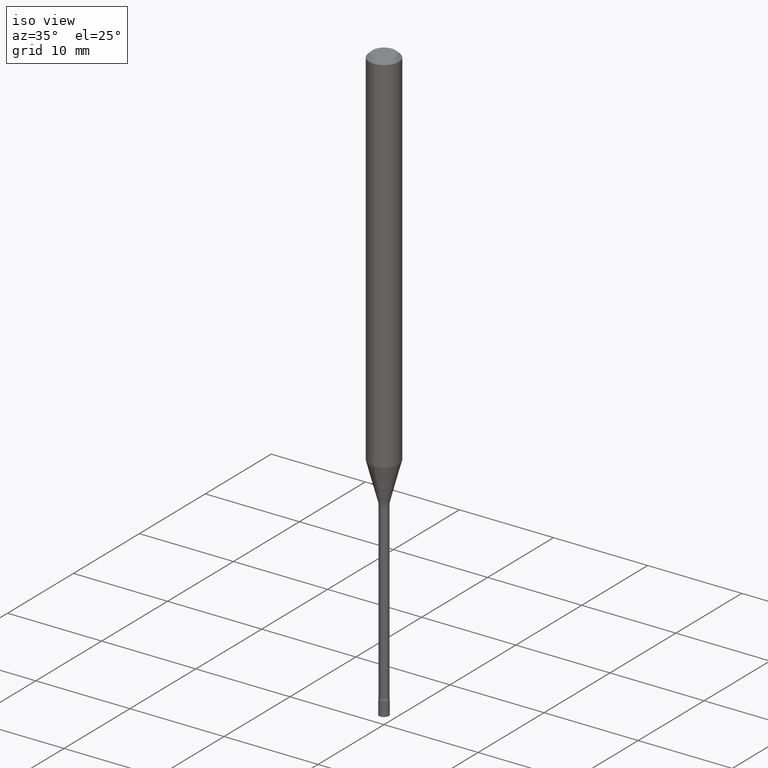
[diagram: clean part render]
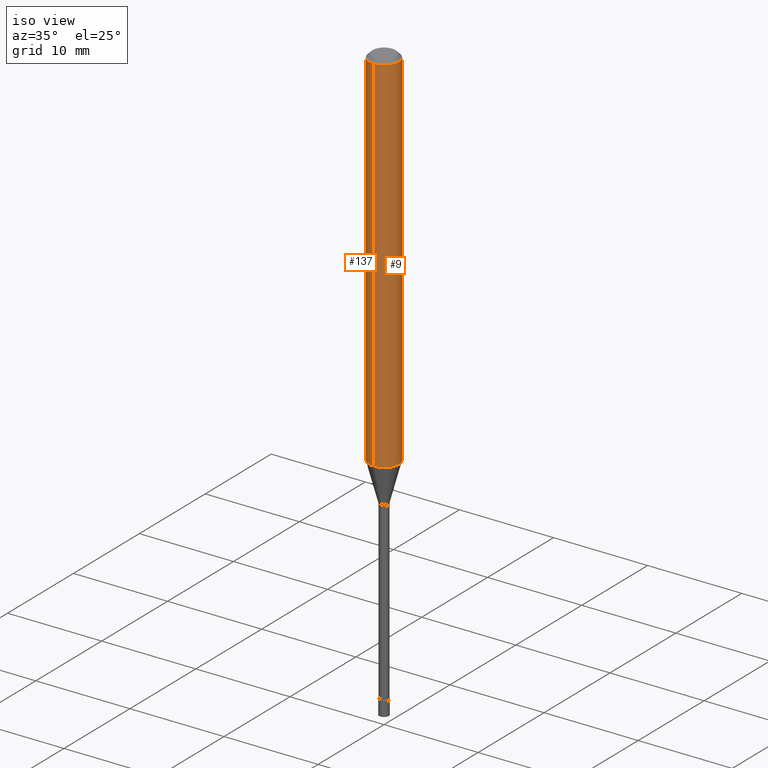
[diagram: same view with one multi-face feature highlighted, each face labeled with its STEP entity id]
A machine part, iso view. The highlighted faces form ONE feature: a constant-radius fillet chain: 2 tangent blend faces with common blend radius 1.5875 mm. The faces share edges in the B-rep.
Their STEP definitions:
[1] entity #9 (Cylinder):
#4 = EDGE_CURVE ( 'NONE', #278, #88, #257, .T. ) ;
#9 = ADVANCED_FACE ( 'NONE', ( #419 ), #294, .T. ) ;
#22 = DIRECTION ( 'NONE',  ( -6.982962677686265922E-15, -1.000000000000000000, 3.491543940097985609E-15 ) ) ;
#26 = LINE ( 'NONE', #93, #269 ) ;
#37 = EDGE_CURVE ( 'NONE', #193, #365, #26, .T. ) ;
#58 = DIRECTION ( 'NONE',  ( -2.445425091962523904E-29, 3.491543940097986004E-15, 1.000000000000000000 ) ) ;
#76 = VECTOR ( 'NONE', #262, 39.37007874015748143 ) ;
#88 = VERTEX_POINT ( 'NONE', #505 ) ;
#93 = CARTESIAN_POINT ( 'NONE',  ( -4.364351673553916201E-16, -0.06250000000000000000, 2.182214962561241006E-16 ) ) ;
#110 = CARTESIAN_POINT ( 'NONE',  ( -4.364351673553541492E-16, -0.06250000000000538458, -1.536909379709239909 ) ) ;
#117 = ORIENTED_EDGE ( 'NONE', *, *, #4, .T. ) ;
#123 = CIRCLE ( 'NONE', #436, 0.06250000000000000000 ) ;
#124 = CARTESIAN_POINT ( 'NONE',  ( 3.758396761213533964E-29, -5.366186631203552806E-15, -1.536909379709240131 ) ) ;
#156 = DIRECTION ( 'NONE',  ( -2.445425091962523904E-29, 3.491543940097986004E-15, 1.000000000000000000 ) ) ;
#164 = DIRECTION ( 'NONE',  ( -6.982962677686265922E-15, -1.000000000000000000, 4.370956789862821150E-15 ) ) ;
#171 = CARTESIAN_POINT ( 'NONE',  ( 3.668137637943792951E-31, -5.237315910146990666E-17, -0.01500000000000003067 ) ) ;
#173 = DIRECTION ( 'NONE',  ( -6.982962677686265922E-15, -1.000000000000000000, 3.483106191921935554E-15 ) ) ;
#193 = VERTEX_POINT ( 'NONE', #110 ) ;
#196 = ORIENTED_EDGE ( 'NONE', *, *, #408, .T. ) ;
#237 = EDGE_LOOP ( 'NONE', ( #196, #117, #315, #449 ) ) ;
#257 = LINE ( 'NONE', #380, #76 ) ;
#262 = DIRECTION ( 'NONE',  ( -2.445425091962523904E-29, 3.491543940097986004E-15, 1.000000000000000000 ) ) ;
#269 = VECTOR ( 'NONE', #58, 39.37007874015748143 ) ;
#278 = VERTEX_POINT ( 'NONE', #396 ) ;
#279 = CIRCLE ( 'NONE', #384, 0.06250000000000000000 ) ;
#280 = CARTESIAN_POINT ( 'NONE',  ( -4.364351673553912750E-16, -0.06250000000000005551, -0.01499999999999981209 ) ) ;
#294 = CYLINDRICAL_SURFACE ( 'NONE', #462, 0.06250000000000000000 ) ;
#295 = DIRECTION ( 'NONE',  ( -2.445425091962523904E-29, 3.491543940097986004E-15, 1.000000000000000000 ) ) ;
#315 = ORIENTED_EDGE ( 'NONE', *, *, #481, .F. ) ;
#365 = VERTEX_POINT ( 'NONE', #280 ) ;
#377 = CARTESIAN_POINT ( 'NONE',  ( 0.000000000000000000, 0.000000000000000000, 0.000000000000000000 ) ) ;
#380 = CARTESIAN_POINT ( 'NONE',  ( 4.440892098500625669E-16, 0.06250000000000000000, -2.182214962561241006E-16 ) ) ;
#384 = AXIS2_PLACEMENT_3D ( 'NONE', #124, #156, #164 ) ;
#396 = CARTESIAN_POINT ( 'NONE',  ( 4.440892098500999885E-16, 0.06249999999999461542, -1.536909379709240575 ) ) ;
#408 = EDGE_CURVE ( 'NONE', #193, #278, #279, .T. ) ;
#419 = FACE_OUTER_BOUND ( 'NONE', #237, .T. ) ;
#436 = AXIS2_PLACEMENT_3D ( 'NONE', #171, #295, #173 ) ;
#449 = ORIENTED_EDGE ( 'NONE', *, *, #37, .F. ) ;
#462 = AXIS2_PLACEMENT_3D ( 'NONE', #377, #465, #22 ) ;
#465 = DIRECTION ( 'NONE',  ( -2.445425091962523904E-29, 3.491543940097986004E-15, 1.000000000000000000 ) ) ;
#481 = EDGE_CURVE ( 'NONE', #365, #88, #123, .T. ) ;
#505 = CARTESIAN_POINT ( 'NONE',  ( 4.440892098501004815E-16, 0.06249999999999995143, -0.01500000000000024751 ) ) ;
[2] entity #137 (Cylinder):
#4 = EDGE_CURVE ( 'NONE', #278, #88, #257, .T. ) ;
#26 = LINE ( 'NONE', #93, #269 ) ;
#37 = EDGE_CURVE ( 'NONE', #193, #365, #26, .T. ) ;
#51 = ORIENTED_EDGE ( 'NONE', *, *, #37, .T. ) ;
#58 = DIRECTION ( 'NONE',  ( -2.445425091962523904E-29, 3.491543940097986004E-15, 1.000000000000000000 ) ) ;
#60 = AXIS2_PLACEMENT_3D ( 'NONE', #139, #420, #136 ) ;
#76 = VECTOR ( 'NONE', #262, 39.37007874015748143 ) ;
#78 = CIRCLE ( 'NONE', #60, 0.06250000000000000000 ) ;
#88 = VERTEX_POINT ( 'NONE', #505 ) ;
#93 = CARTESIAN_POINT ( 'NONE',  ( -4.364351673553916201E-16, -0.06250000000000000000, 2.182214962561241006E-16 ) ) ;
#110 = CARTESIAN_POINT ( 'NONE',  ( -4.364351673553541492E-16, -0.06250000000000538458, -1.536909379709239909 ) ) ;
#136 = DIRECTION ( 'NONE',  ( -6.982962677686265922E-15, -1.000000000000000000, 3.483106191921935554E-15 ) ) ;
#137 = ADVANCED_FACE ( 'NONE', ( #431 ), #152, .T. ) ;
#139 = CARTESIAN_POINT ( 'NONE',  ( 3.668137637943792951E-31, -5.237315910146990666E-17, -0.01500000000000003067 ) ) ;
#149 = DIRECTION ( 'NONE',  ( -2.445425091962523904E-29, 3.491543940097986004E-15, 1.000000000000000000 ) ) ;
#152 = CYLINDRICAL_SURFACE ( 'NONE', #417, 0.06250000000000000000 ) ;
#193 = VERTEX_POINT ( 'NONE', #110 ) ;
#232 = EDGE_CURVE ( 'NONE', #278, #193, #444, .T. ) ;
#233 = DIRECTION ( 'NONE',  ( -6.982962677686265922E-15, -1.000000000000000000, 4.370956789862821150E-15 ) ) ;
#257 = LINE ( 'NONE', #380, #76 ) ;
#262 = DIRECTION ( 'NONE',  ( -2.445425091962523904E-29, 3.491543940097986004E-15, 1.000000000000000000 ) ) ;
#269 = VECTOR ( 'NONE', #58, 39.37007874015748143 ) ;
#275 = CARTESIAN_POINT ( 'NONE',  ( 3.758396761213533964E-29, -5.366186631203552806E-15, -1.536909379709240131 ) ) ;
#278 = VERTEX_POINT ( 'NONE', #396 ) ;
#280 = CARTESIAN_POINT ( 'NONE',  ( -4.364351673553912750E-16, -0.06250000000000005551, -0.01499999999999981209 ) ) ;
#283 = ORIENTED_EDGE ( 'NONE', *, *, #4, .F. ) ;
#288 = EDGE_LOOP ( 'NONE', ( #283, #405, #51, #467 ) ) ;
#347 = DIRECTION ( 'NONE',  ( -6.982962677686265922E-15, -1.000000000000000000, 3.491543940097985609E-15 ) ) ;
#365 = VERTEX_POINT ( 'NONE', #280 ) ;
#380 = CARTESIAN_POINT ( 'NONE',  ( 4.440892098500625669E-16, 0.06250000000000000000, -2.182214962561241006E-16 ) ) ;
#391 = DIRECTION ( 'NONE',  ( -2.445425091962523904E-29, 3.491543940097986004E-15, 1.000000000000000000 ) ) ;
#396 = CARTESIAN_POINT ( 'NONE',  ( 4.440892098500999885E-16, 0.06249999999999461542, -1.536909379709240575 ) ) ;
#405 = ORIENTED_EDGE ( 'NONE', *, *, #232, .T. ) ;
#417 = AXIS2_PLACEMENT_3D ( 'NONE', #441, #149, #347 ) ;
#420 = DIRECTION ( 'NONE',  ( -2.445425091962523904E-29, 3.491543940097986004E-15, 1.000000000000000000 ) ) ;
#431 = FACE_OUTER_BOUND ( 'NONE', #288, .T. ) ;
#441 = CARTESIAN_POINT ( 'NONE',  ( 0.000000000000000000, 0.000000000000000000, 0.000000000000000000 ) ) ;
#444 = CIRCLE ( 'NONE', #463, 0.06250000000000000000 ) ;
#463 = AXIS2_PLACEMENT_3D ( 'NONE', #275, #391, #233 ) ;
#467 = ORIENTED_EDGE ( 'NONE', *, *, #472, .F. ) ;
#472 = EDGE_CURVE ( 'NONE', #88, #365, #78, .T. ) ;
#505 = CARTESIAN_POINT ( 'NONE',  ( 4.440892098501004815E-16, 0.06249999999999995143, -0.01500000000000024751 ) ) ;